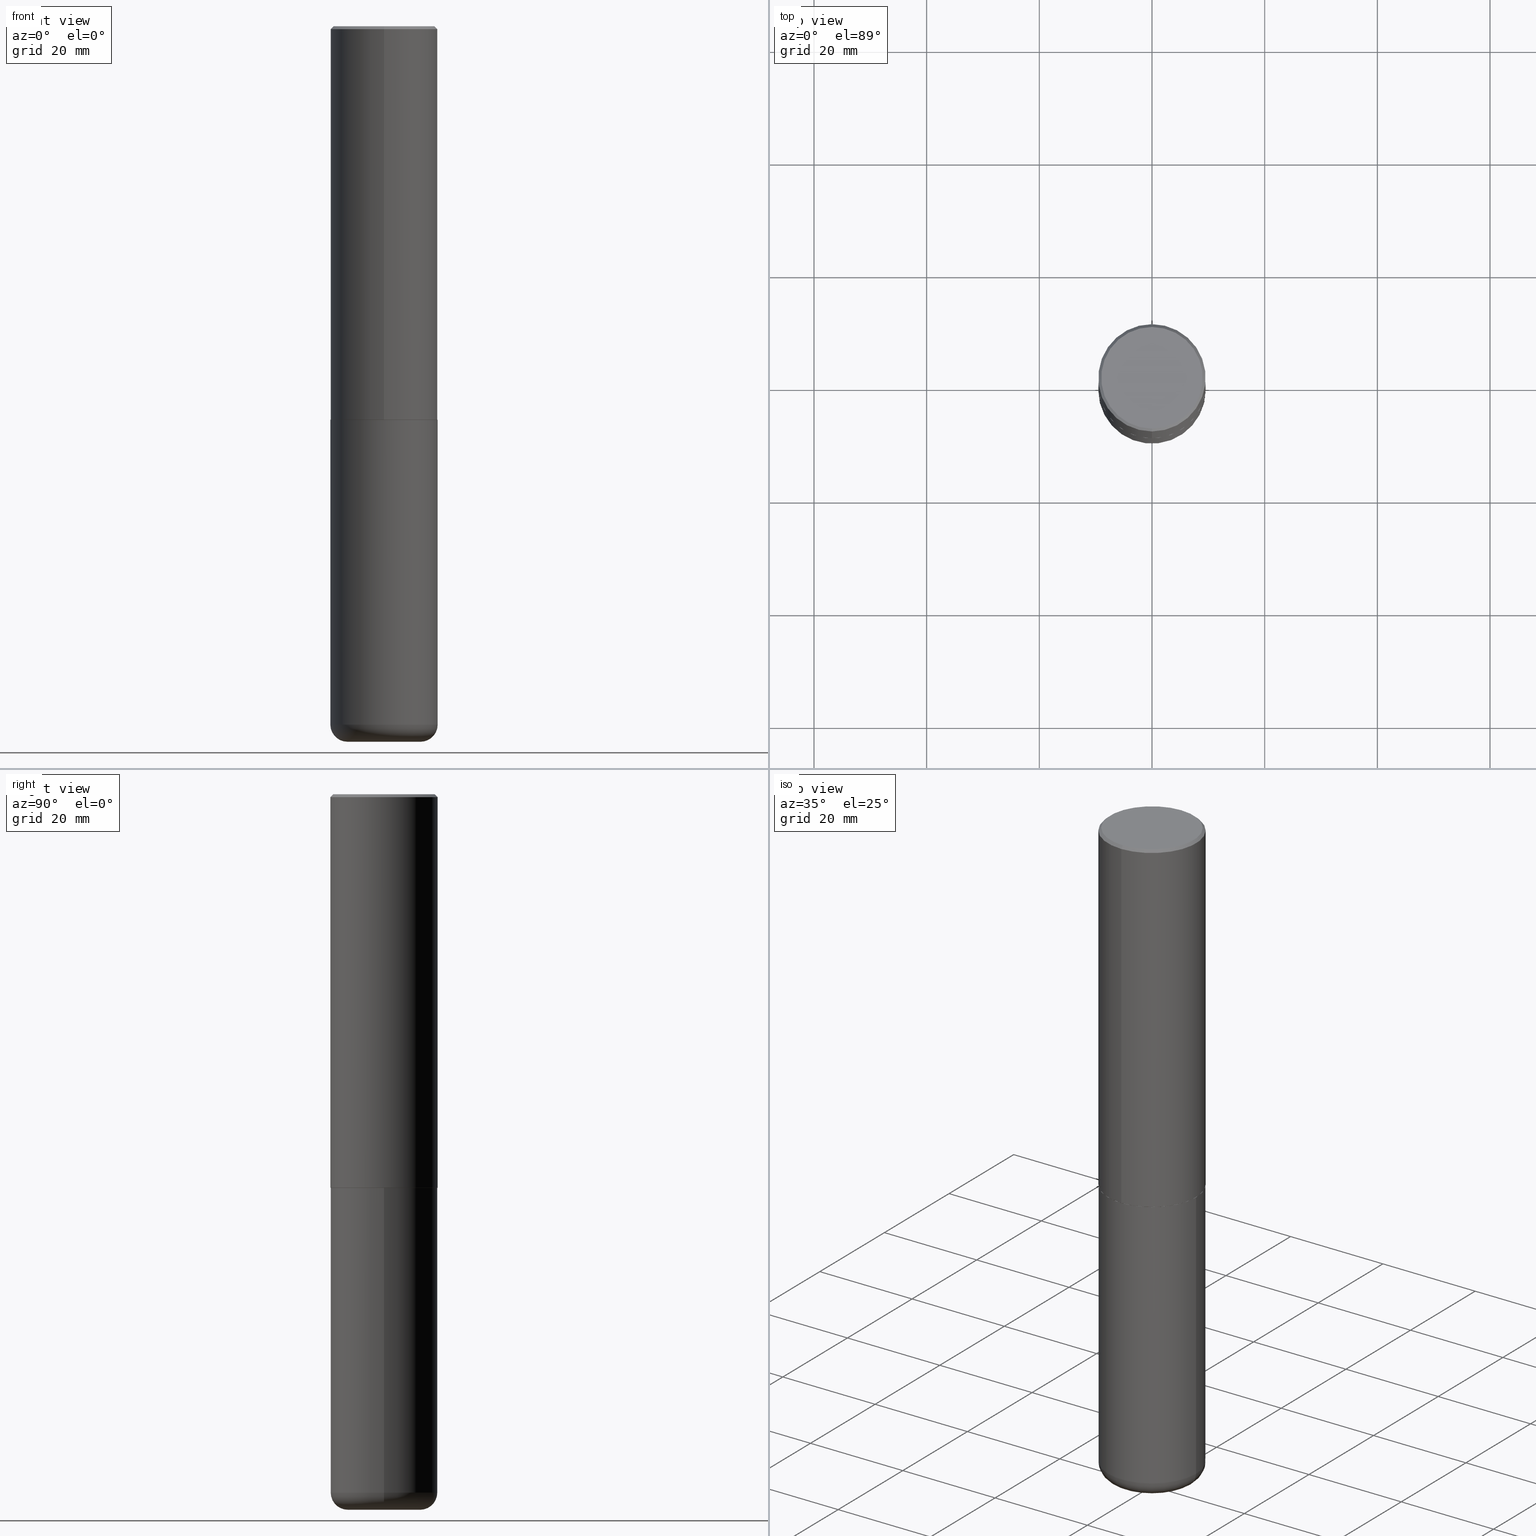
[diagram: canonical four-view strip — front | top / right | iso, engineering-drawing reading convention]
A machine part, canonical four-view strip (front | top / right | iso — engineering-drawing reading convention). The complete STEP part file that produces these views, byte-faithful:
ISO-10303-21;
HEADER;
FILE_DESCRIPTION (( 'STEP AP203' ),
    '1' );
FILE_NAME ('37669.STEP',
    '2024-03-02T07:39:19',
    ( '' ),
    ( '' ),
    'SwSTEP 2.0',
    'SolidWorks 2023',
    '' );
FILE_SCHEMA (( 'CONFIG_CONTROL_DESIGN' ));
ENDSEC;

DATA;
#1 = DIRECTION ( 'NONE',  ( -6.982962677686265922E-15, -1.000000000000000000, 3.490662795793665557E-15 ) ) ;
#2 = ADVANCED_FACE ( 'NONE', ( #18 ), #20, .T. ) ;
#3 = CIRCLE ( 'NONE', #49, 0.1199999999999999539 ) ;
#4 = DIRECTION ( 'NONE',  ( -4.851104656540954809E-15, -0.7071067811865486830, -0.7071067811865463515 ) ) ;
#5 = APPROVAL_PERSON_ORGANIZATION ( #297, #255, #95 ) ;
#6 = ADVANCED_FACE ( 'NONE', ( #86 ), #82, .F. ) ;
#7 = LINE ( 'NONE', #128, #351 ) ;
#8 = DIRECTION ( 'NONE',  ( -2.445468806185136597E-29, 3.491481338843145583E-15, 1.000000000000000000 ) ) ;
#9 = DIRECTION ( 'NONE',  ( -1.000000000000000000, 6.982962677686265922E-15, -4.876176775795935793E-29 ) ) ;
#10 = AXIS2_PLACEMENT_3D ( 'NONE', #310, #317, #1 ) ;
#11 = FACE_OUTER_BOUND ( 'NONE', #87, .T. ) ;
#12 = PERSON_AND_ORGANIZATION ( #305, #28 ) ;
#13 = CARTESIAN_POINT ( 'NONE',  ( -0.2550000000000000044, -1.500970819624082478E-14, -5.000000000000000000 ) ) ;
#14 = CARTESIAN_POINT ( 'NONE',  ( 6.726611077289389265E-29, -9.599322688432580971E-15, -2.750000000000000000 ) ) ;
#15 = CLOSED_SHELL ( 'NONE', ( #2, #198, #329, #126, #272, #393, #147, #6 ) ) ;
#16 = DIRECTION ( 'NONE',  ( -2.446040391741596606E-29, 3.490662795793665557E-15, 1.000000000000000000 ) ) ;
#17 = ORIENTED_EDGE ( 'NONE', *, *, #222, .T. ) ;
#18 = FACE_OUTER_BOUND ( 'NONE', #367, .T. ) ;
#19 = EDGE_CURVE ( 'NONE', #303, #311, #91, .T. ) ;
#20 = CONICAL_SURFACE ( 'NONE', #262, 0.3739999999999999991, 0.7853981633977213939 ) ;
#21 = DIRECTION ( 'NONE',  ( 1.000000000000000000, 0.000000000000000000, 0.000000000000000000 ) ) ;
#22 = ORIENTED_EDGE ( 'NONE', *, *, #309, .T. ) ;
#23 = ORIENTED_EDGE ( 'NONE', *, *, #180, .F. ) ;
#24 = VERTEX_POINT ( 'NONE', #54 ) ;
#25 = ORIENTED_EDGE ( 'NONE', *, *, #370, .F. ) ;
#26 = ORIENTED_EDGE ( 'NONE', *, *, #356, .T. ) ;
#27 = AXIS2_PLACEMENT_3D ( 'NONE', #416, #96, #384 ) ;
#28 = ORGANIZATION ( 'UNSPECIFIED', 'UNSPECIFIED', '' ) ;
#29 = EDGE_LOOP ( 'NONE', ( #300, #31, #208, #379 ) ) ;
#30 =( CONVERSION_BASED_UNIT ( 'INCH', #363 ) LENGTH_UNIT ( ) NAMED_UNIT ( #119 ) );
#31 = ORIENTED_EDGE ( 'NONE', *, *, #238, .T. ) ;
#32 = DIRECTION ( 'NONE',  ( -6.982962677686265922E-15, -1.000000000000000000, 2.913971193241877611E-15 ) ) ;
#33 = DIRECTION ( 'NONE',  ( -2.445468806185136877E-29, 3.491481338843145188E-15, 1.000000000000000000 ) ) ;
#34 = CIRCLE ( 'NONE', #131, 0.1199999999999999539 ) ;
#35 = DIRECTION ( 'NONE',  ( -4.937700262165896205E-15, -0.7071067811867381980, 0.7071067811863568364 ) ) ;
#36 = PERSON_AND_ORGANIZATION ( #305, #28 ) ;
#37 = MANIFOLD_SOLID_BREP ( 'Body-Move/Copy2[1]', #335 ) ;
#38 = DIRECTION ( 'NONE',  ( -2.445468806185136877E-29, 3.491481338843145188E-15, 1.000000000000000000 ) ) ;
#39 = CC_DESIGN_DATE_AND_TIME_ASSIGNMENT ( #291, #175, ( #323 ) ) ;
#40 = DIRECTION ( 'NONE',  ( 4.937700262164538576E-15, 0.7071067811865437980, -0.7071067811865512365 ) ) ;
#41 = COORDINATED_UNIVERSAL_TIME_OFFSET ( 5, 0, .BEHIND. ) ;
#42 = CC_DESIGN_APPROVAL ( #97, ( #344 ) ) ;
#43 = DIRECTION ( 'NONE',  ( -1.000000000000000000, 6.982962677686265922E-15, -4.876176775795935793E-29 ) ) ;
#44 = DATE_AND_TIME ( #103, #145 ) ;
#45 = FACE_OUTER_BOUND ( 'NONE', #298, .T. ) ;
#46 = CALENDAR_DATE ( 2024, 2, 3 ) ;
#47 = MANIFOLD_SOLID_BREP ( 'Body-Move/Copy2[2]', #15 ) ;
#48 = CARTESIAN_POINT ( 'NONE',  ( 6.725039217009124520E-29, -9.601573681818649859E-15, -2.750000000000000000 ) ) ;
#49 = AXIS2_PLACEMENT_3D ( 'NONE', #326, #257, #359 ) ;
#50 = VECTOR ( 'NONE', #194, 39.37007874015748143 ) ;
#51 = DIRECTION ( 'NONE',  ( -2.446040391741596606E-29, 3.490662795793665557E-15, 1.000000000000000000 ) ) ;
#52 = DIRECTION ( 'NONE',  ( -2.445468806185136597E-29, 3.491481338843145583E-15, 1.000000000000000000 ) ) ;
#53 = ORIENTED_EDGE ( 'NONE', *, *, #374, .F. ) ;
#54 = CARTESIAN_POINT ( 'NONE',  ( 0.3749999999999999445, -1.965703993768690011E-14, -4.880000000000000782 ) ) ;
#55 = VERTEX_POINT ( 'NONE', #409 ) ;
#56 = DIRECTION ( 'NONE',  ( 6.982962677686265922E-15, 1.000000000000000000, -3.490662795793665557E-15 ) ) ;
#57 = EDGE_CURVE ( 'NONE', #311, #303, #74, .T. ) ;
#58 = ORIENTED_EDGE ( 'NONE', *, *, #390, .F. ) ;
#59 = EDGE_LOOP ( 'NONE', ( #402, #142 ) ) ;
#60 = CC_DESIGN_APPROVAL ( #376, ( #406 ) ) ;
#61 = CARTESIAN_POINT ( 'NONE',  ( -0.3749999999999999445, -1.437389367445417440E-14, -4.880000000000000782 ) ) ;
#62 = ORIENTED_EDGE ( 'NONE', *, *, #231, .F. ) ;
#63 = EDGE_CURVE ( 'NONE', #55, #177, #397, .T. ) ;
#64 = CARTESIAN_POINT ( 'NONE',  ( -1.141397163745304909E-45, 1.628849886601155835E-31, 4.666305460853910467E-17 ) ) ;
#65 =( NAMED_UNIT ( * ) PLANE_ANGLE_UNIT ( ) SI_UNIT ( $, .RADIAN. ) );
#66 = PERSON_AND_ORGANIZATION ( #305, #28 ) ;
#67 = CYLINDRICAL_SURFACE ( 'NONE', #167, 0.3750000000000002220 ) ;
#68 = VECTOR ( 'NONE', #35, 39.37007874015748143 ) ;
#69 = CARTESIAN_POINT ( 'NONE',  ( -2.618611004132351594E-15, -0.3750000000000002220, 1.308998548422625521E-15 ) ) ;
#70 = FACE_OUTER_BOUND ( 'NONE', #267, .T. ) ;
#71 = DIRECTION ( 'NONE',  ( 5.024295867789434219E-15, 0.7071067811867430830, 0.7071067811863519514 ) ) ;
#72 = COORDINATED_UNIVERSAL_TIME_OFFSET ( 5, 0, .BEHIND. ) ;
#73 = CARTESIAN_POINT ( 'NONE',  ( 1.222734403092568523E-28, -1.745740669421572989E-14, -5.000000000000000000 ) ) ;
#74 = CIRCLE ( 'NONE', #113, 0.3750000000000000555 ) ;
#75 = FACE_OUTER_BOUND ( 'NONE', #182, .T. ) ;
#76 = CC_DESIGN_PERSON_AND_ORGANIZATION_ASSIGNMENT ( #36, #125, ( #406 ) ) ;
#77 = DIRECTION ( 'NONE',  ( -2.446040391741596606E-29, 3.490662795793665557E-15, 1.000000000000000000 ) ) ;
#78 = DIRECTION ( 'NONE',  ( 2.446040391741596606E-29, -3.490662795793665557E-15, -1.000000000000000000 ) ) ;
#79 = EDGE_CURVE ( 'NONE', #24, #112, #388, .T. ) ;
#80 = EDGE_LOOP ( 'NONE', ( #261, #22, #117, #120 ) ) ;
#81 = ORIENTED_EDGE ( 'NONE', *, *, #63, .T. ) ;
#82 = PLANE ( 'NONE',  #192 ) ;
#83 = AXIS2_PLACEMENT_3D ( 'NONE', #214, #313, #92 ) ;
#84 = AXIS2_PLACEMENT_3D ( 'NONE', #200, #162, #191 ) ;
#85 = ORIENTED_EDGE ( 'NONE', *, *, #164, .T. ) ;
#86 = FACE_OUTER_BOUND ( 'NONE', #59, .T. ) ;
#87 = EDGE_LOOP ( 'NONE', ( #415, #115, #369, #377 ) ) ;
#88 = DIRECTION ( 'NONE',  ( -6.982962677686266711E-15, -1.000000000000000000, 3.491481338843145583E-15 ) ) ;
#89 = ORIENTED_EDGE ( 'NONE', *, *, #395, .T. ) ;
#90 = ADVANCED_FACE ( 'NONE', ( #293 ), #352, .T. ) ;
#91 = CIRCLE ( 'NONE', #304, 0.3750000000000000555 ) ;
#92 = DIRECTION ( 'NONE',  ( 1.000000000000000000, -6.982962677686265922E-15, 4.876176775795935793E-29 ) ) ;
#93 = ADVANCED_FACE ( 'NONE', ( #265 ), #343, .T. ) ;
#94 = LINE ( 'NONE', #217, #294 ) ;
#95 = APPROVAL_ROLE ( '' ) ;
#96 = DIRECTION ( 'NONE',  ( -2.445468806185136597E-29, 3.491481338843145583E-15, 1.000000000000000000 ) ) ;
#97 = APPROVAL ( #252, 'UNSPECIFIED' ) ;
#98 = CIRCLE ( 'NONE', #212, 0.3750000000000000555 ) ;
#99 = FACE_OUTER_BOUND ( 'NONE', #184, .T. ) ;
#100 = DIRECTION ( 'NONE',  ( 2.438088387897960049E-29, -3.491481338843145188E-15, -1.000000000000000000 ) ) ;
#101 = COORDINATED_UNIVERSAL_TIME_OFFSET ( 5, 0, .BEHIND. ) ;
#102 = CARTESIAN_POINT ( 'NONE',  ( 2.664535259100376880E-15, 0.3750000000000002220, -1.308998548422625521E-15 ) ) ;
#103 = CALENDAR_DATE ( 2024, 2, 3 ) ;
#104 = DIRECTION ( 'NONE',  ( -2.446040391741596606E-29, 3.490662795793665557E-15, 1.000000000000000000 ) ) ;
#105 = LINE ( 'NONE', #102, #50 ) ;
#106 = DIRECTION ( 'NONE',  ( -2.446040391741596606E-29, 3.490662795793665557E-15, 1.000000000000000000 ) ) ;
#107 = VERTEX_POINT ( 'NONE', #387 ) ;
#108 = AXIS2_PLACEMENT_3D ( 'NONE', #375, #8, #247 ) ;
#109 = ORIENTED_EDGE ( 'NONE', *, *, #418, .F. ) ;
#110 = ORIENTED_EDGE ( 'NONE', *, *, #309, .F. ) ;
#111 = ORIENTED_EDGE ( 'NONE', *, *, #333, .F. ) ;
#112 = VERTEX_POINT ( 'NONE', #61 ) ;
#113 = AXIS2_PLACEMENT_3D ( 'NONE', #207, #332, #339 ) ;
#114 = CONICAL_SURFACE ( 'NONE', #176, 0.3750000000000000555, 0.7853981633974465026 ) ;
#115 = ORIENTED_EDGE ( 'NONE', *, *, #180, .T. ) ;
#116 = ADVANCED_FACE ( 'NONE', ( #99 ), #342, .T. ) ;
#117 = ORIENTED_EDGE ( 'NONE', *, *, #203, .T. ) ;
#118 = PLANE ( 'NONE',  #10 ) ;
#119 = DIMENSIONAL_EXPONENTS ( 1.000000000000000000, 0.000000000000000000, 0.000000000000000000, 0.000000000000000000, 0.000000000000000000, 0.000000000000000000, 0.000000000000000000 ) ;
#120 = ORIENTED_EDGE ( 'NONE', *, *, #57, .F. ) ;
#121 = LINE ( 'NONE', #354, #174 ) ;
#122 = AXIS2_PLACEMENT_3D ( 'NONE', #287, #106, #324 ) ;
#123 =( NAMED_UNIT ( * ) SI_UNIT ( $, .STERADIAN. ) SOLID_ANGLE_UNIT ( ) );
#124 = CARTESIAN_POINT ( 'NONE',  ( -2.611628041454596160E-15, -0.3740000000000096581, -2.749999999999998668 ) ) ;
#125 = PERSON_AND_ORGANIZATION_ROLE ( 'creator' ) ;
#126 = ADVANCED_FACE ( 'NONE', ( #152 ), #288, .T. ) ;
#127 = ADVANCED_BREP_SHAPE_REPRESENTATION ( '37669', ( #37, #47, #289 ), #188 ) ;
#128 = CARTESIAN_POINT ( 'NONE',  ( 0.3750000000000000555, -2.618611004132350016E-15, 1.828566290923476203E-29 ) ) ;
#129 = COORDINATED_UNIVERSAL_TIME_OFFSET ( 5, 0, .BEHIND. ) ;
#130 = CARTESIAN_POINT ( 'NONE',  ( 6.724165036897648492E-29, -9.595832025636787455E-15, -2.749000000000000110 ) ) ;
#131 = AXIS2_PLACEMENT_3D ( 'NONE', #189, #88, #154 ) ;
#132 = CIRCLE ( 'NONE', #336, 0.2550000000000000044 ) ;
#133 = CARTESIAN_POINT ( 'NONE',  ( 2.618611004132350411E-15, 0.3749999999999999445, -0.02000000000000139513 ) ) ;
#134 = UNCERTAINTY_MEASURE_WITH_UNIT (LENGTH_MEASURE( 1.000000000000000082E-05 ), #30, 'distance_accuracy_value', 'NONE');
#135 = DIRECTION ( 'NONE',  ( 2.438088387897960049E-29, -3.491481338843145188E-15, -1.000000000000000000 ) ) ;
#136 = EDGE_CURVE ( 'NONE', #264, #24, #34, .T. ) ;
#137 = CARTESIAN_POINT ( 'NONE',  ( 1.222734403092568523E-28, -1.745740669421572989E-14, -5.000000000000000000 ) ) ;
#138 = DIRECTION ( 'NONE',  ( -2.445468806185136597E-29, 3.491481338843145583E-15, 1.000000000000000000 ) ) ;
#139 = AXIS2_PLACEMENT_3D ( 'NONE', #64, #378, #312 ) ;
#140 = LOCAL_TIME ( 2, 39, 19.00000000000000000, #169 ) ;
#141 = DIRECTION ( 'NONE',  ( -6.982962677686265922E-15, -1.000000000000000000, 3.494488891895536035E-15 ) ) ;
#142 = ORIENTED_EDGE ( 'NONE', *, *, #236, .T. ) ;
#143 = ORIENTED_EDGE ( 'NONE', *, *, #370, .T. ) ;
#144 = CIRCLE ( 'NONE', #165, 0.3750000000000003886 ) ;
#145 = LOCAL_TIME ( 2, 39, 19.00000000000000000, #129 ) ;
#146 = ORIENTED_EDGE ( 'NONE', *, *, #231, .T. ) ;
#147 = ADVANCED_FACE ( 'NONE', ( #219 ), #118, .F. ) ;
#148 = DIRECTION ( 'NONE',  ( -2.445468806185136597E-29, 3.491481338843145583E-15, 1.000000000000000000 ) ) ;
#149 = ORIENTED_EDGE ( 'NONE', *, *, #79, .F. ) ;
#150 = DIRECTION ( 'NONE',  ( -6.982962677686265922E-15, -1.000000000000000000, 2.913971193241877611E-15 ) ) ;
#151 = ORIENTED_EDGE ( 'NONE', *, *, #19, .T. ) ;
#152 = FACE_OUTER_BOUND ( 'NONE', #368, .T. ) ;
#153 = CARTESIAN_POINT ( 'NONE',  ( 2.548781377355487113E-15, 0.3549999999999999822, -1.192522237898212341E-15 ) ) ;
#154 = DIRECTION ( 'NONE',  ( 1.000000000000000000, -6.982962677686270655E-15, 0.000000000000000000 ) ) ;
#155 = DATE_AND_TIME ( #159, #220 ) ;
#156 = DIRECTION ( 'NONE',  ( -6.982962677686266711E-15, -1.000000000000000000, 3.490662795793665951E-15 ) ) ;
#157 = PERSON_AND_ORGANIZATION ( #305, #28 ) ;
#158 = CARTESIAN_POINT ( 'NONE',  ( 2.664535259100411196E-15, 0.3749999999999907296, -2.749000000000000998 ) ) ;
#159 = CALENDAR_DATE ( 2024, 2, 3 ) ;
#160 = CIRCLE ( 'NONE', #274, 0.2550000000000000044 ) ;
#161 = PLANE ( 'NONE',  #307 ) ;
#162 = DIRECTION ( 'NONE',  ( -2.446040391741596606E-29, 3.490662795793665557E-15, 1.000000000000000000 ) ) ;
#163 = PERSON_AND_ORGANIZATION_ROLE ( 'design_supplier' ) ;
#164 = EDGE_CURVE ( 'NONE', #268, #107, #365, .T. ) ;
#165 = AXIS2_PLACEMENT_3D ( 'NONE', #279, #319, #150 ) ;
#166 = CARTESIAN_POINT ( 'NONE',  ( 2.618611004132350411E-15, 0.3749999999999999445, -0.02000000000000139513 ) ) ;
#167 = AXIS2_PLACEMENT_3D ( 'NONE', #244, #187, #156 ) ;
#168 = CONICAL_SURFACE ( 'NONE', #84, 0.3739999999999999991, 0.7853981633977213939 ) ;
#169 = COORDINATED_UNIVERSAL_TIME_OFFSET ( 5, 0, .BEHIND. ) ;
#170 = EDGE_CURVE ( 'NONE', #177, #107, #248, .T. ) ;
#171 = ORIENTED_EDGE ( 'NONE', *, *, #356, .F. ) ;
#172 = PERSON_AND_ORGANIZATION_ROLE ( 'creator' ) ;
#173 = ORIENTED_EDGE ( 'NONE', *, *, #399, .T. ) ;
#174 = VECTOR ( 'NONE', #4, 39.37007874015748143 ) ;
#175 = DATE_TIME_ROLE ( 'classification_date' ) ;
#176 = AXIS2_PLACEMENT_3D ( 'NONE', #400, #78, #321 ) ;
#177 = VERTEX_POINT ( 'NONE', #124 ) ;
#178 = CARTESIAN_POINT ( 'NONE',  ( 6.726611077289389265E-29, -9.599322688432580971E-15, -2.750000000000000000 ) ) ;
#179 = CARTESIAN_POINT ( 'NONE',  ( 1.193388777418346668E-28, -1.703842893355455010E-14, -4.880000000000000782 ) ) ;
#180 = EDGE_CURVE ( 'NONE', #308, #306, #121, .T. ) ;
#181 = ORIENTED_EDGE ( 'NONE', *, *, #170, .F. ) ;
#182 = EDGE_LOOP ( 'NONE', ( #53, #171 ) ) ;
#183 = VECTOR ( 'NONE', #40, 39.37007874015748143 ) ;
#184 = EDGE_LOOP ( 'NONE', ( #241, #26, #345, #110 ) ) ;
#185 = DIRECTION ( 'NONE',  ( 1.000000000000000000, -6.982962677686265922E-15, 4.876176775795935793E-29 ) ) ;
#186 = DATE_AND_TIME ( #249, #412 ) ;
#187 = DIRECTION ( 'NONE',  ( -2.446040391741596606E-29, 3.490662795793665557E-15, 1.000000000000000000 ) ) ;
#188 =( GEOMETRIC_REPRESENTATION_CONTEXT ( 3 ) GLOBAL_UNCERTAINTY_ASSIGNED_CONTEXT ( ( #134 ) ) GLOBAL_UNIT_ASSIGNED_CONTEXT ( ( #30, #65, #123 ) ) REPRESENTATION_CONTEXT ( 'NONE', 'WORKASPACE' ) );
#189 = CARTESIAN_POINT ( 'NONE',  ( 0.2550000000000000044, -1.881908441636454685E-14, -4.880000000000000782 ) ) ;
#190 = FACE_OUTER_BOUND ( 'NONE', #29, .T. ) ;
#191 = DIRECTION ( 'NONE',  ( -6.982962677686266711E-15, -1.000000000000000000, 2.921762560068730595E-15 ) ) ;
#192 = AXIS2_PLACEMENT_3D ( 'NONE', #205, #337, #56 ) ;
#193 = APPROVAL_PERSON_ORGANIZATION ( #66, #376, #320 ) ;
#194 = DIRECTION ( 'NONE',  ( -2.446040391741596606E-29, 3.490662795793665557E-15, 1.000000000000000000 ) ) ;
#195 = PERSON_AND_ORGANIZATION_ROLE ( 'classification_officer' ) ;
#196 = APPLICATION_PROTOCOL_DEFINITION ( 'international standard', 'config_control_design', 1994, #276 ) ;
#197 = PLANE ( 'NONE',  #353 ) ;
#198 = ADVANCED_FACE ( 'NONE', ( #70 ), #67, .T. ) ;
#199 = DIRECTION ( 'NONE',  ( -6.982962677686266711E-15, -1.000000000000000000, 2.921762560068730595E-15 ) ) ;
#200 = CARTESIAN_POINT ( 'NONE',  ( 6.726611077289389265E-29, -9.599322688432580971E-15, -2.750000000000000000 ) ) ;
#201 = AXIS2_PLACEMENT_3D ( 'NONE', #253, #138, #230 ) ;
#202 = EDGE_LOOP ( 'NONE', ( #151, #408 ) ) ;
#203 = EDGE_CURVE ( 'NONE', #24, #303, #7, .T. ) ;
#204 = ORIENTED_EDGE ( 'NONE', *, *, #227, .F. ) ;
#205 = CARTESIAN_POINT ( 'NONE',  ( 2.478951750578624209E-15, 0.3549999999999999822, -1.215853765202481601E-15 ) ) ;
#206 = AXIS2_PLACEMENT_3D ( 'NONE', #178, #51, #299 ) ;
#207 = CARTESIAN_POINT ( 'NONE',  ( 6.725039217009124520E-29, -9.601573681818649859E-15, -2.750000000000000000 ) ) ;
#208 = ORIENTED_EDGE ( 'NONE', *, *, #19, .F. ) ;
#209 = ORIENTED_EDGE ( 'NONE', *, *, #222, .F. ) ;
#210 = DIRECTION ( 'NONE',  ( -2.446040391741596606E-29, 3.490662795793665557E-15, 1.000000000000000000 ) ) ;
#211 = ORIENTED_EDGE ( 'NONE', *, *, #374, .T. ) ;
#212 = AXIS2_PLACEMENT_3D ( 'NONE', #290, #16, #141 ) ;
#213 = APPROVAL_DATE_TIME ( #44, #255 ) ;
#214 = CARTESIAN_POINT ( 'NONE',  ( 0.000000000000000000, 0.000000000000000000, 0.000000000000000000 ) ) ;
#215 = PERSON_AND_ORGANIZATION_ROLE ( 'design_owner' ) ;
#216 = ADVANCED_FACE ( 'NONE', ( #190 ), #381, .T. ) ;
#217 = CARTESIAN_POINT ( 'NONE',  ( -0.3750000000000000555, 2.664535259100376091E-15, -1.844600658845589598E-29 ) ) ;
#218 = APPROVAL_DATE_TIME ( #186, #376 ) ;
#219 = FACE_OUTER_BOUND ( 'NONE', #270, .T. ) ;
#220 = LOCAL_TIME ( 2, 39, 19.00000000000000000, #41 ) ;
#221 = CARTESIAN_POINT ( 'NONE',  ( -2.611628041454596160E-15, -0.3740000000000096581, -2.749999999999998668 ) ) ;
#222 = EDGE_CURVE ( 'NONE', #107, #268, #144, .T. ) ;
#223 = CARTESIAN_POINT ( 'NONE',  ( 1.222734403092568523E-28, -1.745740669421572989E-14, -5.000000000000000000 ) ) ;
#224 = CALENDAR_DATE ( 2024, 2, 3 ) ;
#225 = CARTESIAN_POINT ( 'NONE',  ( 2.657429831742841742E-15, 0.3739999999999903957, -2.750000000000000888 ) ) ;
#226 = CIRCLE ( 'NONE', #201, 0.3750000000000000555 ) ;
#227 = EDGE_CURVE ( 'NONE', #259, #308, #314, .T. ) ;
#228 = DIRECTION ( 'NONE',  ( -6.982962677686265922E-15, -1.000000000000000000, 3.494488891895536035E-15 ) ) ;
#229 = DIRECTION ( 'NONE',  ( -2.445468806185136597E-29, 3.491481338843145583E-15, 1.000000000000000000 ) ) ;
#230 = DIRECTION ( 'NONE',  ( 1.000000000000000000, -6.982962677686261189E-15, 0.000000000000000000 ) ) ;
#231 = EDGE_CURVE ( 'NONE', #107, #306, #350, .T. ) ;
#232 = AXIS2_PLACEMENT_3D ( 'NONE', #130, #275, #32 ) ;
#233 = DIRECTION ( 'NONE',  ( 1.000000000000000000, -6.982962677686266711E-15, 0.000000000000000000 ) ) ;
#234 = ORIENTED_EDGE ( 'NONE', *, *, #333, .T. ) ;
#235 = MECHANICAL_CONTEXT ( 'NONE', #276, 'mechanical' ) ;
#236 = EDGE_CURVE ( 'NONE', #308, #259, #245, .T. ) ;
#237 = ORIENTED_EDGE ( 'NONE', *, *, #136, .F. ) ;
#238 = EDGE_CURVE ( 'NONE', #112, #311, #94, .T. ) ;
#239 = ORIENTED_EDGE ( 'NONE', *, *, #395, .F. ) ;
#240 = DIRECTION ( 'NONE',  ( 1.000000000000000000, -6.982962677686261189E-15, 0.000000000000000000 ) ) ;
#241 = ORIENTED_EDGE ( 'NONE', *, *, #286, .F. ) ;
#242 = DIRECTION ( 'NONE',  ( -2.446040391741596606E-29, 3.490662795793665557E-15, 1.000000000000000000 ) ) ;
#243 = ORIENTED_EDGE ( 'NONE', *, *, #418, .T. ) ;
#244 = CARTESIAN_POINT ( 'NONE',  ( 0.000000000000000000, 0.000000000000000000, 0.000000000000000000 ) ) ;
#245 = CIRCLE ( 'NONE', #139, 0.3549999999999999822 ) ;
#246 = CARTESIAN_POINT ( 'NONE',  ( 4.892080783483214581E-31, -6.981325591587361238E-17, -0.02000000000000008715 ) ) ;
#247 = DIRECTION ( 'NONE',  ( 1.000000000000000000, -6.982962677686263555E-15, 4.883557194083111219E-29 ) ) ;
#248 = LINE ( 'NONE', #221, #68 ) ;
#249 = CALENDAR_DATE ( 2024, 2, 3 ) ;
#250 = CIRCLE ( 'NONE', #389, 0.3750000000000000555 ) ;
#251 = CARTESIAN_POINT ( 'NONE',  ( -2.504081769186608216E-15, -0.3549999999999999822, 1.285848347115290366E-15 ) ) ;
#252 = APPROVAL_STATUS ( 'not_yet_approved' ) ;
#253 = CARTESIAN_POINT ( 'NONE',  ( 1.193388777418346668E-28, -1.703842893355455010E-14, -4.880000000000000782 ) ) ;
#254 = CYLINDRICAL_SURFACE ( 'NONE', #122, 0.3750000000000002220 ) ;
#255 = APPROVAL ( #385, 'UNSPECIFIED' ) ;
#256 = PRODUCT_DEFINITION_SHAPE ( 'NONE', 'NONE',  #406 ) ;
#257 = DIRECTION ( 'NONE',  ( 7.105427357601001859E-15, 1.000000000000000000, -3.491481338843145583E-15 ) ) ;
#258 = DIRECTION ( 'NONE',  ( 1.000000000000000000, -6.982962677686267499E-15, 0.000000000000000000 ) ) ;
#259 = VERTEX_POINT ( 'NONE', #153 ) ;
#260 = CC_DESIGN_PERSON_AND_ORGANIZATION_ASSIGNMENT ( #328, #163, ( #344 ) ) ;
#261 = ORIENTED_EDGE ( 'NONE', *, *, #238, .F. ) ;
#262 = AXIS2_PLACEMENT_3D ( 'NONE', #414, #405, #371 ) ;
#263 = VERTEX_POINT ( 'NONE', #13 ) ;
#264 = VERTEX_POINT ( 'NONE', #280 ) ;
#265 = FACE_OUTER_BOUND ( 'NONE', #80, .T. ) ;
#266 = AXIS2_PLACEMENT_3D ( 'NONE', #179, #52, #240 ) ;
#267 = EDGE_LOOP ( 'NONE', ( #17, #234, #58, #62 ) ) ;
#268 = VERTEX_POINT ( 'NONE', #158 ) ;
#269 = CARTESIAN_POINT ( 'NONE',  ( -1.141397163745304909E-45, 1.628849886601155835E-31, 4.666305460853910467E-17 ) ) ;
#270 = EDGE_LOOP ( 'NONE', ( #239, #341 ) ) ;
#271 = DIRECTION ( 'NONE',  ( 2.446040391741596606E-29, -3.490662795793665557E-15, -1.000000000000000000 ) ) ;
#272 = ADVANCED_FACE ( 'NONE', ( #401 ), #254, .T. ) ;
#273 = DIRECTION ( 'NONE',  ( -2.445468806185136597E-29, 3.491481338843145583E-15, 1.000000000000000000 ) ) ;
#274 = AXIS2_PLACEMENT_3D ( 'NONE', #137, #229, #258 ) ;
#275 = DIRECTION ( 'NONE',  ( -2.446040391741596606E-29, 3.490662795793665557E-15, 1.000000000000000000 ) ) ;
#276 = APPLICATION_CONTEXT ( 'configuration controlled 3d designs of mechanical parts and assemblies' ) ;
#277 = DATE_TIME_ROLE ( 'creation_date' ) ;
#278 = PRODUCT_RELATED_PRODUCT_CATEGORY ( 'detail', '', ( #398 ) ) ;
#279 = CARTESIAN_POINT ( 'NONE',  ( 6.724165036897648492E-29, -9.595832025636787455E-15, -2.749000000000000110 ) ) ;
#280 = CARTESIAN_POINT ( 'NONE',  ( 0.2550000000000000044, -1.923806217702572663E-14, -5.000000000000000000 ) ) ;
#281 = PERSON_AND_ORGANIZATION ( #305, #28 ) ;
#282 = LOCAL_TIME ( 2, 39, 19.00000000000000000, #101 ) ;
#283 =( LENGTH_UNIT ( ) NAMED_UNIT ( * ) SI_UNIT ( $, .METRE. ) );
#284 = CARTESIAN_POINT ( 'NONE',  ( 0.3750000000000000555, -1.222018468595100145E-14, -2.750000000000000000 ) ) ;
#285 = DESIGN_CONTEXT ( 'detailed design', #301, 'design' ) ;
#286 = EDGE_CURVE ( 'NONE', #263, #112, #3, .T. ) ;
#287 = CARTESIAN_POINT ( 'NONE',  ( 0.000000000000000000, 0.000000000000000000, 0.000000000000000000 ) ) ;
#288 = CONICAL_SURFACE ( 'NONE', #322, 0.3750000000000000555, 0.7853981633974465026 ) ;
#289 = AXIS2_PLACEMENT_3D ( 'NONE', #383, #330, #21 ) ;
#290 = CARTESIAN_POINT ( 'NONE',  ( 4.892080783483214581E-31, -6.981325591587361238E-17, -0.02000000000000008715 ) ) ;
#291 = DATE_AND_TIME ( #46, #140 ) ;
#292 = ADVANCED_FACE ( 'NONE', ( #75 ), #161, .T. ) ;
#293 = FACE_OUTER_BOUND ( 'NONE', #334, .T. ) ;
#294 = VECTOR ( 'NONE', #33, 39.37007874015748143 ) ;
#295 = VECTOR ( 'NONE', #71, 39.37007874015748143 ) ;
#296 = CARTESIAN_POINT ( 'NONE',  ( 6.725039217009124520E-29, -9.601573681818649859E-15, -2.750000000000000000 ) ) ;
#297 = PERSON_AND_ORGANIZATION ( #305, #28 ) ;
#298 = EDGE_LOOP ( 'NONE', ( #25, #81, #407, #417 ) ) ;
#299 = DIRECTION ( 'NONE',  ( -6.982962677686266711E-15, -1.000000000000000000, 2.921762560068730595E-15 ) ) ;
#300 = ORIENTED_EDGE ( 'NONE', *, *, #79, .T. ) ;
#301 = APPLICATION_CONTEXT ( 'configuration controlled 3d designs of mechanical parts and assemblies' ) ;
#302 = VERTEX_POINT ( 'NONE', #133 ) ;
#303 = VERTEX_POINT ( 'NONE', #284 ) ;
#304 = AXIS2_PLACEMENT_3D ( 'NONE', #296, #148, #233 ) ;
#305 = PERSON ( 'UNSPECIFIED', 'UNSPECIFIED', 'UNSPECIFIED', ('UNSPECIFIED'), ('UNSPECIFIED'), ('UNSPECIFIED') ) ;
#306 = VERTEX_POINT ( 'NONE', #394 ) ;
#307 = AXIS2_PLACEMENT_3D ( 'NONE', #73, #135, #9 ) ;
#308 = VERTEX_POINT ( 'NONE', #251 ) ;
#309 = EDGE_CURVE ( 'NONE', #112, #24, #226, .T. ) ;
#310 = CARTESIAN_POINT ( 'NONE',  ( 6.726611077289389265E-29, -9.599322688432580971E-15, -2.750000000000000000 ) ) ;
#311 = VERTEX_POINT ( 'NONE', #391 ) ;
#312 = DIRECTION ( 'NONE',  ( -6.982962677686265922E-15, -1.000000000000000000, 3.490662795793665557E-15 ) ) ;
#313 = DIRECTION ( 'NONE',  ( -2.445468806185136597E-29, 3.491481338843145583E-15, 1.000000000000000000 ) ) ;
#314 = CIRCLE ( 'NONE', #380, 0.3549999999999999822 ) ;
#315 = APPROVAL_PERSON_ORGANIZATION ( #281, #97, #392 ) ;
#316 = ADVANCED_FACE ( 'NONE', ( #364 ), #197, .F. ) ;
#317 = DIRECTION ( 'NONE',  ( -2.446040391741596045E-29, 3.490662795793665557E-15, 1.000000000000000000 ) ) ;
#318 = APPROVAL_STATUS ( 'not_yet_approved' ) ;
#319 = DIRECTION ( 'NONE',  ( -2.446040391741596606E-29, 3.490662795793665557E-15, 1.000000000000000000 ) ) ;
#320 = APPROVAL_ROLE ( '' ) ;
#321 = DIRECTION ( 'NONE',  ( 6.982962677686265922E-15, 1.000000000000000000, -3.494488891895536035E-15 ) ) ;
#322 = AXIS2_PLACEMENT_3D ( 'NONE', #246, #271, #349 ) ;
#323 = SECURITY_CLASSIFICATION ( '', '', #358 ) ;
#324 = DIRECTION ( 'NONE',  ( -6.982962677686266711E-15, -1.000000000000000000, 3.490662795793665951E-15 ) ) ;
#325 = CC_DESIGN_DATE_AND_TIME_ASSIGNMENT ( #155, #277, ( #406 ) ) ;
#326 = CARTESIAN_POINT ( 'NONE',  ( -0.2550000000000000044, -1.522654495736629538E-14, -4.880000000000000782 ) ) ;
#327 = LINE ( 'NONE', #166, #183 ) ;
#328 = PERSON_AND_ORGANIZATION ( #305, #28 ) ;
#329 = ADVANCED_FACE ( 'NONE', ( #11 ), #114, .T. ) ;
#330 = DIRECTION ( 'NONE',  ( 0.000000000000000000, 0.000000000000000000, 1.000000000000000000 ) ) ;
#331 = DATE_AND_TIME ( #224, #282 ) ;
#332 = DIRECTION ( 'NONE',  ( -2.445468806185136597E-29, 3.491481338843145583E-15, 1.000000000000000000 ) ) ;
#333 = EDGE_CURVE ( 'NONE', #268, #302, #105, .T. ) ;
#334 = EDGE_LOOP ( 'NONE', ( #211, #340, #149, #237 ) ) ;
#335 = CLOSED_SHELL ( 'NONE', ( #216, #90, #316, #93, #116, #292 ) ) ;
#336 = AXIS2_PLACEMENT_3D ( 'NONE', #223, #396, #357 ) ;
#337 = DIRECTION ( 'NONE',  ( 2.446040391741596045E-29, -3.490662795793665557E-15, -1.000000000000000000 ) ) ;
#338 = CC_DESIGN_PERSON_AND_ORGANIZATION_ASSIGNMENT ( #403, #172, ( #344 ) ) ;
#339 = DIRECTION ( 'NONE',  ( 1.000000000000000000, -6.982962677686266711E-15, 0.000000000000000000 ) ) ;
#340 = ORIENTED_EDGE ( 'NONE', *, *, #286, .T. ) ;
#341 = ORIENTED_EDGE ( 'NONE', *, *, #63, .F. ) ;
#342 = TOROIDAL_SURFACE ( 'NONE', #27, 0.2550000000000000044, 0.1199999999999999123 ) ;
#343 = CYLINDRICAL_SURFACE ( 'NONE', #372, 0.3750000000000000555 ) ;
#344 = PRODUCT_DEFINITION_FORMATION_WITH_SPECIFIED_SOURCE ( 'ANY', '', #398, .NOT_KNOWN. ) ;
#345 = ORIENTED_EDGE ( 'NONE', *, *, #136, .T. ) ;
#346 = SHAPE_DEFINITION_REPRESENTATION ( #256, #127 ) ;
#347 = CARTESIAN_POINT ( 'NONE',  ( 0.000000000000000000, 0.000000000000000000, 0.000000000000000000 ) ) ;
#348 = APPLICATION_PROTOCOL_DEFINITION ( 'international standard', 'config_control_design', 1994, #301 ) ;
#349 = DIRECTION ( 'NONE',  ( 6.982962677686265922E-15, 1.000000000000000000, -3.494488891895536035E-15 ) ) ;
#350 = LINE ( 'NONE', #69, #410 ) ;
#351 = VECTOR ( 'NONE', #38, 39.37007874015748143 ) ;
#352 = TOROIDAL_SURFACE ( 'NONE', #108, 0.2550000000000000044, 0.1199999999999999123 ) ;
#353 = AXIS2_PLACEMENT_3D ( 'NONE', #48, #100, #43 ) ;
#354 = CARTESIAN_POINT ( 'NONE',  ( -2.572686749164323547E-15, -0.3750000000000001110, -0.01999999999999877570 ) ) ;
#355 = CARTESIAN_POINT ( 'NONE',  ( 4.892080783483214581E-31, -6.981325591587361238E-17, -0.02000000000000008715 ) ) ;
#356 = EDGE_CURVE ( 'NONE', #263, #264, #160, .T. ) ;
#357 = DIRECTION ( 'NONE',  ( 1.000000000000000000, -6.982962677686267499E-15, 0.000000000000000000 ) ) ;
#358 = SECURITY_CLASSIFICATION_LEVEL ( 'unclassified' ) ;
#359 = DIRECTION ( 'NONE',  ( -1.000000000000000000, 7.105427357600993970E-15, 0.000000000000000000 ) ) ;
#360 = APPROVAL_DATE_TIME ( #331, #97 ) ;
#361 = LINE ( 'NONE', #225, #295 ) ;
#362 = CC_DESIGN_PERSON_AND_ORGANIZATION_ASSIGNMENT ( #157, #215, ( #398 ) ) ;
#363 = LENGTH_MEASURE_WITH_UNIT ( LENGTH_MEASURE( 0.02539999999999999897 ), #283 );
#364 = FACE_OUTER_BOUND ( 'NONE', #202, .T. ) ;
#365 = CIRCLE ( 'NONE', #232, 0.3750000000000003886 ) ;
#366 = CIRCLE ( 'NONE', #404, 0.3739999999999999991 ) ;
#367 = EDGE_LOOP ( 'NONE', ( #89, #143, #209, #181 ) ) ;
#368 = EDGE_LOOP ( 'NONE', ( #23, #204, #173, #243 ) ) ;
#369 = ORIENTED_EDGE ( 'NONE', *, *, #390, .T. ) ;
#370 = EDGE_CURVE ( 'NONE', #55, #268, #361, .T. ) ;
#371 = DIRECTION ( 'NONE',  ( -6.982962677686266711E-15, -1.000000000000000000, 2.921762560068730595E-15 ) ) ;
#372 = AXIS2_PLACEMENT_3D ( 'NONE', #347, #273, #185 ) ;
#373 = EDGE_LOOP ( 'NONE', ( #111, #85, #146, #109 ) ) ;
#374 = EDGE_CURVE ( 'NONE', #264, #263, #132, .T. ) ;
#375 = CARTESIAN_POINT ( 'NONE',  ( 1.193388777418346668E-28, -1.703842893355455010E-14, -4.880000000000000782 ) ) ;
#376 = APPROVAL ( #318, 'UNSPECIFIED' ) ;
#377 = ORIENTED_EDGE ( 'NONE', *, *, #399, .F. ) ;
#378 = DIRECTION ( 'NONE',  ( -2.446040391741596606E-29, 3.490662795793665557E-15, 1.000000000000000000 ) ) ;
#379 = ORIENTED_EDGE ( 'NONE', *, *, #203, .F. ) ;
#380 = AXIS2_PLACEMENT_3D ( 'NONE', #269, #210, #386 ) ;
#381 = CYLINDRICAL_SURFACE ( 'NONE', #83, 0.3750000000000000555 ) ;
#382 = CC_DESIGN_APPROVAL ( #255, ( #323 ) ) ;
#383 = CARTESIAN_POINT ( 'NONE',  ( 0.000000000000000000, 0.000000000000000000, 0.000000000000000000 ) ) ;
#384 = DIRECTION ( 'NONE',  ( 1.000000000000000000, -6.982962677686263555E-15, 4.883557194083111219E-29 ) ) ;
#385 = APPROVAL_STATUS ( 'not_yet_approved' ) ;
#386 = DIRECTION ( 'NONE',  ( -6.982962677686265922E-15, -1.000000000000000000, 3.490662795793665557E-15 ) ) ;
#387 = CARTESIAN_POINT ( 'NONE',  ( -2.618611004132284935E-15, -0.3750000000000099920, -2.748999999999999222 ) ) ;
#388 = CIRCLE ( 'NONE', #266, 0.3750000000000000555 ) ;
#389 = AXIS2_PLACEMENT_3D ( 'NONE', #355, #104, #228 ) ;
#390 = EDGE_CURVE ( 'NONE', #306, #302, #250, .T. ) ;
#391 = CARTESIAN_POINT ( 'NONE',  ( -0.3750000000000000555, -1.065546604858622507E-14, -2.750000000000000000 ) ) ;
#392 = APPROVAL_ROLE ( '' ) ;
#393 = ADVANCED_FACE ( 'NONE', ( #45 ), #168, .T. ) ;
#394 = CARTESIAN_POINT ( 'NONE',  ( -2.572686749164323547E-15, -0.3750000000000001110, -0.01999999999999877570 ) ) ;
#395 = EDGE_CURVE ( 'NONE', #177, #55, #366, .T. ) ;
#396 = DIRECTION ( 'NONE',  ( -2.445468806185136597E-29, 3.491481338843145583E-15, 1.000000000000000000 ) ) ;
#397 = CIRCLE ( 'NONE', #206, 0.3739999999999999991 ) ;
#398 = PRODUCT ( '37669', '37669', '', ( #235 ) ) ;
#399 = EDGE_CURVE ( 'NONE', #259, #302, #327, .T. ) ;
#400 = CARTESIAN_POINT ( 'NONE',  ( 4.892080783483214581E-31, -6.981325591587361238E-17, -0.02000000000000008715 ) ) ;
#401 = FACE_OUTER_BOUND ( 'NONE', #373, .T. ) ;
#402 = ORIENTED_EDGE ( 'NONE', *, *, #227, .T. ) ;
#403 = PERSON_AND_ORGANIZATION ( #305, #28 ) ;
#404 = AXIS2_PLACEMENT_3D ( 'NONE', #14, #77, #199 ) ;
#405 = DIRECTION ( 'NONE',  ( -2.446040391741596606E-29, 3.490662795793665557E-15, 1.000000000000000000 ) ) ;
#406 = PRODUCT_DEFINITION ( 'UNKNOWN', '', #344, #285 ) ;
#407 = ORIENTED_EDGE ( 'NONE', *, *, #170, .T. ) ;
#408 = ORIENTED_EDGE ( 'NONE', *, *, #57, .T. ) ;
#409 = CARTESIAN_POINT ( 'NONE',  ( 2.660982545421643429E-15, 0.3739999999999903957, -2.750000000000000888 ) ) ;
#410 = VECTOR ( 'NONE', #242, 39.37007874015748143 ) ;
#411 = CC_DESIGN_SECURITY_CLASSIFICATION ( #323, ( #344 ) ) ;
#412 = LOCAL_TIME ( 2, 39, 19.00000000000000000, #72 ) ;
#413 = CC_DESIGN_PERSON_AND_ORGANIZATION_ASSIGNMENT ( #12, #195, ( #323 ) ) ;
#414 = CARTESIAN_POINT ( 'NONE',  ( 6.726611077289389265E-29, -9.599322688432580971E-15, -2.750000000000000000 ) ) ;
#415 = ORIENTED_EDGE ( 'NONE', *, *, #236, .F. ) ;
#416 = CARTESIAN_POINT ( 'NONE',  ( 1.193388777418346668E-28, -1.703842893355455010E-14, -4.880000000000000782 ) ) ;
#417 = ORIENTED_EDGE ( 'NONE', *, *, #164, .F. ) ;
#418 = EDGE_CURVE ( 'NONE', #302, #306, #98, .T. ) ;
ENDSEC;
END-ISO-10303-21;
